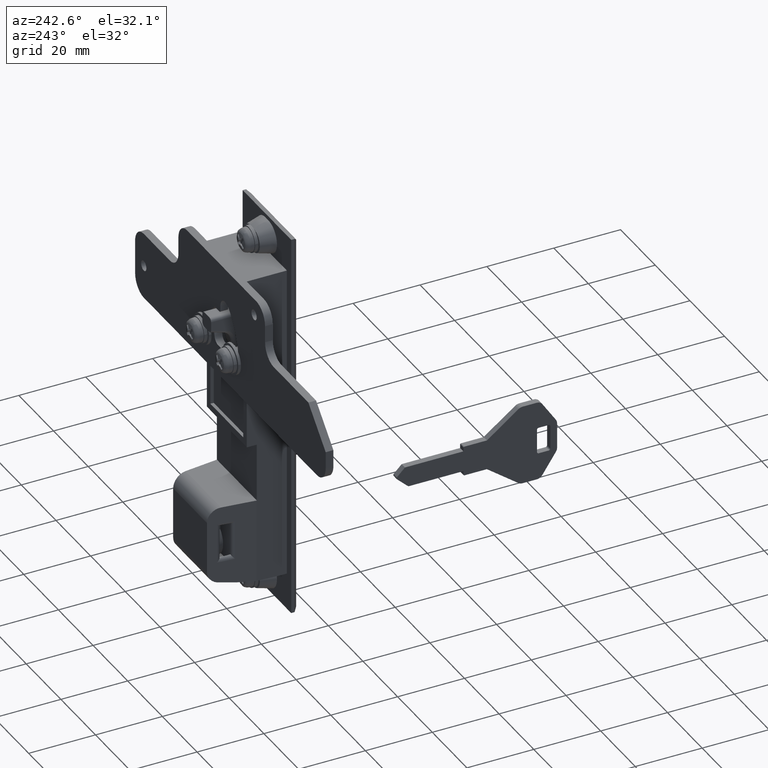
[diagram: clean part render]
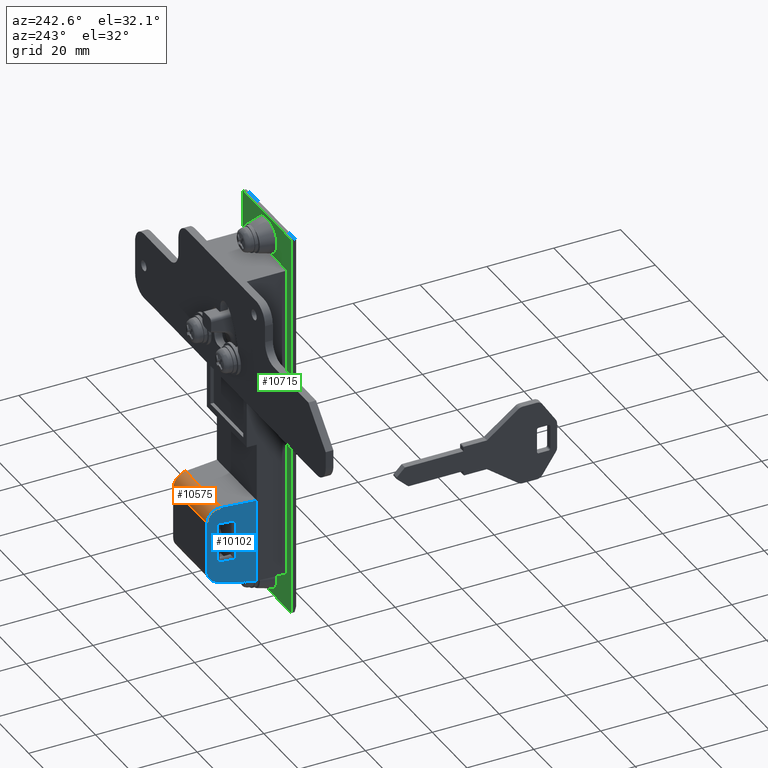
[diagram: same view with three faces highlighted in distinct colors, each labeled with its STEP entity id]
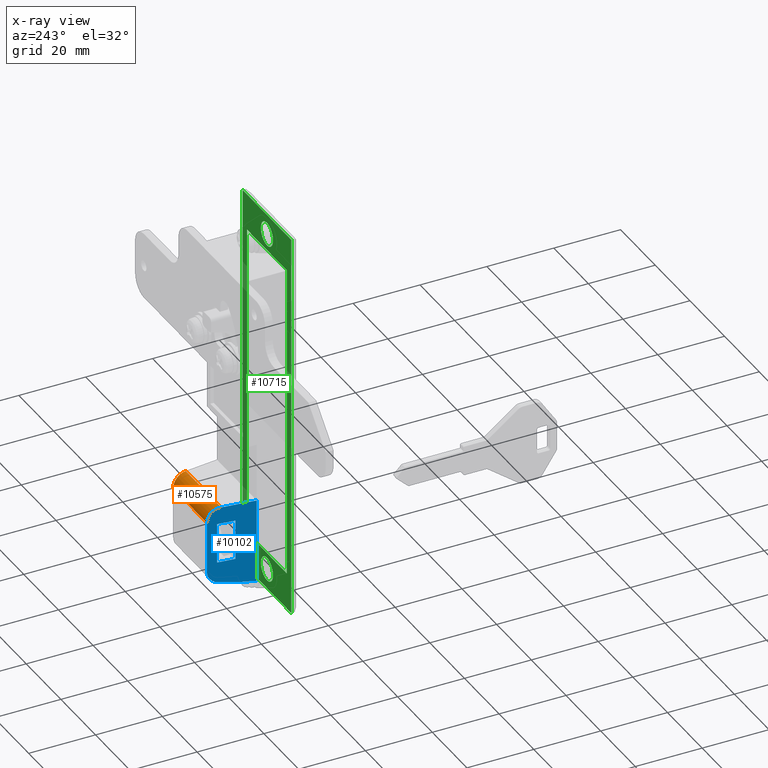
[diagram: x-ray of the same camera — body ghosted, the three highlighted faces saturated]
A machine part, auxiliary view with three faces highlighted in distinct colors.
The next image is the same camera in x-ray (body ghosted, the three faces saturated) — at least one of them is partly hidden behind the body in this view.
Their STEP definitions:

[orange] entity #10575 — the highlighted face is a freeform B-spline surface patch.
#10026=CARTESIAN_POINT('',(11.0,9.750000000000000,-48.499800000000000));
#10027=VERTEX_POINT('',#10026);
#10072=CARTESIAN_POINT('',(7.0,10.249999665476359,-44.499800000000000));
#10073=VERTEX_POINT('',#10072);
#10079=CARTESIAN_POINT('',(11.0,9.749999999999973,-48.499800000000000));
#10080=CARTESIAN_POINT('',(11.000000000000004,9.749999999999973,-46.842945750507624));
#10081=CARTESIAN_POINT('',(9.828427124746190,9.896446511426996,-45.671372875253809));
#10082=CARTESIAN_POINT('',(8.656854249492380,10.042893022854019,-44.499800000000000));
#10083=CARTESIAN_POINT('',(6.999999999999996,10.249999665476340,-44.499800000000008));
#10091=(BOUNDED_CURVE()B_SPLINE_CURVE(2,(#10079,#10080,#10081,#10082,#10083),.UNSPECIFIED.,.F.,.U.)B_SPLINE_CURVE_WITH_KNOTS((3,2,3),(0.0,0.500000000000000,1.0),.UNSPECIFIED.)CURVE()GEOMETRIC_REPRESENTATION_ITEM()RATIONAL_B_SPLINE_CURVE((1.0,0.923879532511285,1.0,0.923879532511285,1.0))REPRESENTATION_ITEM(''));
#10092=EDGE_CURVE('',#10027,#10073,#10091,.T.);
#10108=CARTESIAN_POINT('',(7.0,-10.249999665476260,-44.499800000000000));
#10109=VERTEX_POINT('',#10108);
#10154=CARTESIAN_POINT('',(11.0,-9.750000000000000,-48.499800000000000));
#10155=VERTEX_POINT('',#10154);
#10161=CARTESIAN_POINT('',(7.000000000000011,-10.249999665476340,-44.499800000000008));
#10162=CARTESIAN_POINT('',(8.656854314813476,-10.042893014688890,-44.499800000000008));
#10163=CARTESIAN_POINT('',(9.828427203595728,-9.896446501570811,-45.671372954103347));
#10164=CARTESIAN_POINT('',(11.000000092377972,-9.749999988452736,-46.842945908206694));
#10165=CARTESIAN_POINT('',(11.0,-9.750000000000000,-48.499800000000000));
#10173=(BOUNDED_CURVE()B_SPLINE_CURVE(2,(#10161,#10162,#10163,#10164,#10165),.UNSPECIFIED.,.F.,.U.)B_SPLINE_CURVE_WITH_KNOTS((3,2,3),(0.0,0.500000000000000,1.0),.UNSPECIFIED.)CURVE()GEOMETRIC_REPRESENTATION_ITEM()RATIONAL_B_SPLINE_CURVE((1.0,0.923879527177147,1.0,0.923879527177147,1.0))REPRESENTATION_ITEM(''));
#10174=EDGE_CURVE('',#10109,#10155,#10173,.T.);
#10541=CARTESIAN_POINT('',(11.0,9.750000000000000,-48.499800000000000));
#10542=CARTESIAN_POINT('',(11.0,-9.750000000000000,-48.499800000000000));
#10543=QUASI_UNIFORM_CURVE('',1,(#10541,#10542),.UNSPECIFIED.,.F.,.U.);
#10544=EDGE_CURVE('',#10027,#10155,#10543,.T.);
#10551=CARTESIAN_POINT('',(6.895292206768501,10.762499648750181,-44.501170700097767));
#10552=CARTESIAN_POINT('',(6.895292206768501,-10.775312148331921,-44.501170700097767));
#10553=CARTESIAN_POINT('',(11.259030354376472,10.762499648750177,-44.386902195216031));
#10554=CARTESIAN_POINT('',(11.259030354376472,-10.775312148331924,-44.386902195216031));
#10555=CARTESIAN_POINT('',(10.992539193687470,10.762499648750181,-48.743994158139422));
#10556=CARTESIAN_POINT('',(10.992539193687470,-10.775312148331921,-48.743994158139422));
#10564=(BOUNDED_SURFACE()B_SPLINE_SURFACE(1,2,((#10551,#10553,#10555),(#10552,#10554,#10556)),.UNSPECIFIED.,.F.,.F.,.U.)B_SPLINE_SURFACE_WITH_KNOTS((2,2),(3,3),(0.0,21.537811797082099),(0.0,7.040168494269333),.UNSPECIFIED.)GEOMETRIC_REPRESENTATION_ITEM()RATIONAL_B_SPLINE_SURFACE(((1.0,0.675590207615660,1.0),(1.0,0.675590207615660,1.0)))REPRESENTATION_ITEM('')SURFACE());
#10565=ORIENTED_EDGE('',*,*,#10544,.F.);
#10566=ORIENTED_EDGE('',*,*,#10092,.T.);
#10567=CARTESIAN_POINT('',(7.0,10.249999665476359,-44.499800000000000));
#10568=CARTESIAN_POINT('',(7.0,-10.249999665476260,-44.499800000000000));
#10569=QUASI_UNIFORM_CURVE('',1,(#10567,#10568),.UNSPECIFIED.,.F.,.U.);
#10570=EDGE_CURVE('',#10073,#10109,#10569,.T.);
#10571=ORIENTED_EDGE('',*,*,#10570,.T.);
#10572=ORIENTED_EDGE('',*,*,#10174,.T.);
#10573=EDGE_LOOP('',(#10565,#10566,#10571,#10572));
#10574=FACE_OUTER_BOUND('',#10573,.T.);
#10575=ADVANCED_FACE('',(#10574),#10564,.T.);

[blue] entity #10102 — the highlighted face is a freeform B-spline surface patch.
#8258=CARTESIAN_POINT('',(8.146694461923179,10.106662953635061,-61.500000000000000));
#8259=VERTEX_POINT('',#8258);
#8275=CARTESIAN_POINT('',(3.024034652880800,10.746995001352660,-61.500000000000000));
#8276=VERTEX_POINT('',#8275);
#8277=CARTESIAN_POINT('',(3.024034652880800,10.746995001352660,-61.500000000000000));
#8278=CARTESIAN_POINT('',(8.146694461923179,10.106662953635061,-61.500000000000000));
#8279=QUASI_UNIFORM_CURVE('',1,(#8277,#8278),.UNSPECIFIED.,.F.,.U.);
#8280=EDGE_CURVE('',#8276,#8259,#8279,.T.);
#8357=CARTESIAN_POINT('',(3.024034652880800,10.746995001352660,-49.500000000000000));
#8358=VERTEX_POINT('',#8357);
#8359=CARTESIAN_POINT('',(3.024034652880800,10.746995001352660,-49.500000000000000));
#8360=CARTESIAN_POINT('',(3.024034652880800,10.746995001352660,-61.500000000000000));
#8361=QUASI_UNIFORM_CURVE('',1,(#8359,#8360),.UNSPECIFIED.,.F.,.U.);
#8362=EDGE_CURVE('',#8358,#8276,#8361,.T.);
#8410=CARTESIAN_POINT('',(8.146694461923179,10.106662953635061,-49.500000000000000));
#8411=VERTEX_POINT('',#8410);
#8412=CARTESIAN_POINT('',(8.146694461923179,10.106662953635061,-49.500000000000000));
#8413=CARTESIAN_POINT('',(3.024034652880800,10.746995001352660,-49.500000000000000));
#8414=QUASI_UNIFORM_CURVE('',1,(#8412,#8413),.UNSPECIFIED.,.F.,.U.);
#8415=EDGE_CURVE('',#8411,#8358,#8414,.T.);
#8475=CARTESIAN_POINT('',(8.146694461923179,10.106662953635061,-61.500000000000000));
#8476=CARTESIAN_POINT('',(8.146694461923179,10.106662953635061,-49.500000000000000));
#8477=QUASI_UNIFORM_CURVE('',1,(#8475,#8476),.UNSPECIFIED.,.F.,.U.);
#8478=EDGE_CURVE('',#8259,#8411,#8477,.T.);
#10021=CARTESIAN_POINT('',(11.699300440730370,9.662587503391826,-70.956103281657505));
#10022=CARTESIAN_POINT('',(-3.699310182908576,11.587412543546900,-70.956103281657505));
#10023=CARTESIAN_POINT('',(11.699300440730370,9.662587503391826,-43.241177182372262));
#10024=CARTESIAN_POINT('',(-3.699310182908576,11.587412543546900,-43.241177182372262));
#10025=B_SPLINE_SURFACE_WITH_KNOTS('',1,1,((#10021,#10023),(#10022,#10024)),.UNSPECIFIED.,.F.,.F.,.U.,(2,2),(2,2),(0.0,15.518445816951321),(0.0,27.714926099285250),.UNSPECIFIED.);
#10026=CARTESIAN_POINT('',(11.0,9.750000000000000,-48.499800000000000));
#10027=VERTEX_POINT('',#10026);
#10028=CARTESIAN_POINT('',(11.0,9.750000000000000,-63.904000000000003));
#10029=VERTEX_POINT('',#10028);
#10030=CARTESIAN_POINT('',(11.0,9.750000000000000,-48.499800000000000));
#10031=CARTESIAN_POINT('',(11.0,9.750000000000000,-63.904000000000003));
#10032=QUASI_UNIFORM_CURVE('',1,(#10030,#10031),.UNSPECIFIED.,.F.,.U.);
#10033=EDGE_CURVE('',#10027,#10029,#10032,.T.);
#10034=ORIENTED_EDGE('',*,*,#10033,.T.);
#10035=CARTESIAN_POINT('',(7.999679747244529,10.125039780674919,-67.777178639797597));
#10036=VERTEX_POINT('',#10035);
#10037=CARTESIAN_POINT('',(7.999679747244531,10.125039780674941,-67.777178639797583));
#10038=CARTESIAN_POINT('',(10.999858723269265,9.750017659579543,-67.002564366644535));
#10039=CARTESIAN_POINT('',(11.0,9.750000000000000,-63.904000000000003));
#10047=(BOUNDED_CURVE()B_SPLINE_CURVE(2,(#10037,#10038,#10039),.UNSPECIFIED.,.F.,.U.)CURVE()GEOMETRIC_REPRESENTATION_ITEM()QUASI_UNIFORM_CURVE()RATIONAL_B_SPLINE_CURVE((1.0,0.790580638141583,1.0))REPRESENTATION_ITEM(''));
#10048=EDGE_CURVE('',#10036,#10029,#10047,.T.);
#10049=ORIENTED_EDGE('',*,*,#10048,.F.);
#10050=CARTESIAN_POINT('',(-3.000009366668015,11.500000000000000,-69.697475958334195));
#10051=VERTEX_POINT('',#10050);
#10052=CARTESIAN_POINT('',(-3.000009366668015,11.500000000000000,-69.697475958334195));
#10053=CARTESIAN_POINT('',(2.576652608822311,10.802917719445068,-69.177346516010218));
#10054=CARTESIAN_POINT('',(7.999679747244652,10.125039780674960,-67.777178639797597));
#10062=(BOUNDED_CURVE()B_SPLINE_CURVE(2,(#10052,#10053,#10054),.UNSPECIFIED.,.F.,.U.)CURVE()GEOMETRIC_REPRESENTATION_ITEM()QUASI_UNIFORM_CURVE()RATIONAL_B_SPLINE_CURVE((1.0,0.996814822493567,1.0))REPRESENTATION_ITEM(''));
#10063=EDGE_CURVE('',#10051,#10036,#10062,.T.);
#10064=ORIENTED_EDGE('',*,*,#10063,.F.);
#10065=CARTESIAN_POINT('',(-3.000009366668705,11.500000000000000,-44.499800000000000));
#10066=VERTEX_POINT('',#10065);
#10067=CARTESIAN_POINT('',(-3.000009366668705,11.500000000000000,-44.499800000000000));
#10068=CARTESIAN_POINT('',(-3.000009366668015,11.500000000000000,-69.697475958334195));
#10069=QUASI_UNIFORM_CURVE('',1,(#10067,#10068),.UNSPECIFIED.,.F.,.U.);
#10070=EDGE_CURVE('',#10066,#10051,#10069,.T.);
#10071=ORIENTED_EDGE('',*,*,#10070,.F.);
#10072=CARTESIAN_POINT('',(7.0,10.249999665476359,-44.499800000000000));
#10073=VERTEX_POINT('',#10072);
#10074=CARTESIAN_POINT('',(-3.000009366668705,11.500000000000000,-44.499800000000000));
#10075=CARTESIAN_POINT('',(7.0,10.249999665476359,-44.499800000000000));
#10076=QUASI_UNIFORM_CURVE('',1,(#10074,#10075),.UNSPECIFIED.,.F.,.U.);
#10077=EDGE_CURVE('',#10066,#10073,#10076,.T.);
#10078=ORIENTED_EDGE('',*,*,#10077,.T.);
#10079=CARTESIAN_POINT('',(11.0,9.749999999999973,-48.499800000000000));
#10080=CARTESIAN_POINT('',(11.000000000000004,9.749999999999973,-46.842945750507624));
#10081=CARTESIAN_POINT('',(9.828427124746190,9.896446511426996,-45.671372875253809));
#10082=CARTESIAN_POINT('',(8.656854249492380,10.042893022854019,-44.499800000000000));
#10083=CARTESIAN_POINT('',(6.999999999999996,10.249999665476340,-44.499800000000008));
#10091=(BOUNDED_CURVE()B_SPLINE_CURVE(2,(#10079,#10080,#10081,#10082,#10083),.UNSPECIFIED.,.F.,.U.)B_SPLINE_CURVE_WITH_KNOTS((3,2,3),(0.0,0.500000000000000,1.0),.UNSPECIFIED.)CURVE()GEOMETRIC_REPRESENTATION_ITEM()RATIONAL_B_SPLINE_CURVE((1.0,0.923879532511285,1.0,0.923879532511285,1.0))REPRESENTATION_ITEM(''));
#10092=EDGE_CURVE('',#10027,#10073,#10091,.T.);
#10093=ORIENTED_EDGE('',*,*,#10092,.F.);
#10094=EDGE_LOOP('',(#10034,#10049,#10064,#10071,#10078,#10093));
#10095=FACE_OUTER_BOUND('',#10094,.T.);
#10096=ORIENTED_EDGE('',*,*,#8362,.T.);
#10097=ORIENTED_EDGE('',*,*,#8280,.T.);
#10098=ORIENTED_EDGE('',*,*,#8478,.T.);
#10099=ORIENTED_EDGE('',*,*,#8415,.T.);
#10100=EDGE_LOOP('',(#10096,#10097,#10098,#10099));
#10101=FACE_BOUND('',#10100,.T.);
#10102=ADVANCED_FACE('',(#10095,#10101),#10025,.T.);

[green] entity #10715 — the highlighted face is a freeform B-spline surface patch.
#6758=CARTESIAN_POINT('',(-12.000000000037970,-3.493471794458334,-75.213469888747227));
#6759=VERTEX_POINT('',#6758);
#6765=CARTESIAN_POINT('',(-12.0,0.0,-78.499800000000008));
#6766=VERTEX_POINT('',#6765);
#6767=CARTESIAN_POINT('',(-12.0,0.0,-78.499800000000008));
#6768=CARTESIAN_POINT('',(-12.0,-3.292471233461905,-78.499800000000022));
#6769=CARTESIAN_POINT('',(-12.000000000037970,-3.493471794458335,-75.213469888747227));
#6777=(BOUNDED_CURVE()B_SPLINE_CURVE(2,(#6767,#6768,#6769),.UNSPECIFIED.,.F.,.U.)B_SPLINE_CURVE_WITH_KNOTS((3,3),(0.500000000000000,0.739332962204932),.UNSPECIFIED.)CURVE()GEOMETRIC_REPRESENTATION_ITEM()RATIONAL_B_SPLINE_CURVE((1.0,0.719603993326556,0.976072041593826))REPRESENTATION_ITEM(''));
#6778=EDGE_CURVE('',#6766,#6759,#6777,.T.);
#6780=CARTESIAN_POINT('',(-12.000000000030891,3.475533342243228,-74.586680178419613));
#6781=VERTEX_POINT('',#6780);
#6782=CARTESIAN_POINT('',(-12.000000000030893,3.475533342243228,-74.586680178419613));
#6783=CARTESIAN_POINT('',(-12.000000000000002,3.500000000000000,-74.792515580934079));
#6784=CARTESIAN_POINT('',(-12.0,3.500000000000000,-74.999800000000008));
#6785=CARTESIAN_POINT('',(-12.0,3.500000000000000,-78.499800000000008));
#6786=CARTESIAN_POINT('',(-12.0,0.0,-78.499800000000008));
#6794=(BOUNDED_CURVE()B_SPLINE_CURVE(2,(#6782,#6783,#6784,#6785,#6786),.UNSPECIFIED.,.F.,.U.)B_SPLINE_CURVE_WITH_KNOTS((3,2,3),(0.229562473488289,0.250000000000000,0.500000000000000),.UNSPECIFIED.)CURVE()GEOMETRIC_REPRESENTATION_ITEM()RATIONAL_B_SPLINE_CURVE((0.956026754134269,0.976055948301599,1.0,0.707106781186547,1.0))REPRESENTATION_ITEM(''));
#6795=EDGE_CURVE('',#6781,#6766,#6794,.T.);
#6839=CARTESIAN_POINT('',(-12.0,0.0,-71.499800000000008));
#6840=VERTEX_POINT('',#6839);
#6841=CARTESIAN_POINT('',(-12.0,0.0,-71.499800000000008));
#6842=CARTESIAN_POINT('',(-12.000000000000002,3.108610840323085,-71.499800000000008));
#6843=CARTESIAN_POINT('',(-12.000000000030900,3.475533342243228,-74.586680178419613));
#6851=(BOUNDED_CURVE()B_SPLINE_CURVE(2,(#6841,#6842,#6843),.UNSPECIFIED.,.F.,.U.)B_SPLINE_CURVE_WITH_KNOTS((3,3),(0.0,0.229562473488289),.UNSPECIFIED.)CURVE()GEOMETRIC_REPRESENTATION_ITEM()RATIONAL_B_SPLINE_CURVE((1.0,0.731050832884948,0.956026754134269))REPRESENTATION_ITEM(''));
#6852=EDGE_CURVE('',#6840,#6781,#6851,.T.);
#6854=CARTESIAN_POINT('',(-12.000000000037970,-3.493471794458334,-75.213469888747227));
#6855=CARTESIAN_POINT('',(-11.999999999999998,-3.500000000000000,-75.106734671921046));
#6856=CARTESIAN_POINT('',(-12.0,-3.500000000000000,-74.999800000000008));
#6857=CARTESIAN_POINT('',(-12.0,-3.500000000000000,-71.499800000000008));
#6858=CARTESIAN_POINT('',(-12.0,0.0,-71.499800000000008));
#6866=(BOUNDED_CURVE()B_SPLINE_CURVE(2,(#6854,#6855,#6856,#6857,#6858),.UNSPECIFIED.,.F.,.U.)B_SPLINE_CURVE_WITH_KNOTS((3,2,3),(0.739332962204932,0.750000000000000,1.0),.UNSPECIFIED.)CURVE()GEOMETRIC_REPRESENTATION_ITEM()RATIONAL_B_SPLINE_CURVE((0.976072041593826,0.987502787859991,1.0,0.707106781186547,1.0))REPRESENTATION_ITEM(''));
#6867=EDGE_CURVE('',#6759,#6840,#6866,.T.);
#7130=CARTESIAN_POINT('',(-12.000000000037970,-3.493471794458334,29.786330111252781));
#7131=VERTEX_POINT('',#7130);
#7137=CARTESIAN_POINT('',(-12.0,0.0,26.500000000000000));
#7138=VERTEX_POINT('',#7137);
#7139=CARTESIAN_POINT('',(-12.0,0.0,26.500000000000000));
#7140=CARTESIAN_POINT('',(-12.0,-3.292471233461905,26.500000000000007));
#7141=CARTESIAN_POINT('',(-12.000000000037970,-3.493471794458335,29.786330111252781));
#7149=(BOUNDED_CURVE()B_SPLINE_CURVE(2,(#7139,#7140,#7141),.UNSPECIFIED.,.F.,.U.)B_SPLINE_CURVE_WITH_KNOTS((3,3),(0.500000000000000,0.739332962204932),.UNSPECIFIED.)CURVE()GEOMETRIC_REPRESENTATION_ITEM()RATIONAL_B_SPLINE_CURVE((1.0,0.719603993326556,0.976072041593826))REPRESENTATION_ITEM(''));
#7150=EDGE_CURVE('',#7138,#7131,#7149,.T.);
#7152=CARTESIAN_POINT('',(-12.000000000030891,3.475533342243228,30.413119821580381));
#7153=VERTEX_POINT('',#7152);
#7154=CARTESIAN_POINT('',(-12.000000000030896,3.475533342243228,30.413119821580374));
#7155=CARTESIAN_POINT('',(-12.000000000000004,3.500000000000000,30.207284419065925));
#7156=CARTESIAN_POINT('',(-12.0,3.500000000000000,30.0));
#7157=CARTESIAN_POINT('',(-12.0,3.500000000000000,26.500000000000007));
#7158=CARTESIAN_POINT('',(-12.0,0.0,26.500000000000000));
#7166=(BOUNDED_CURVE()B_SPLINE_CURVE(2,(#7154,#7155,#7156,#7157,#7158),.UNSPECIFIED.,.F.,.U.)B_SPLINE_CURVE_WITH_KNOTS((3,2,3),(0.229562473488290,0.250000000000000,0.500000000000000),.UNSPECIFIED.)CURVE()GEOMETRIC_REPRESENTATION_ITEM()RATIONAL_B_SPLINE_CURVE((0.956026754134270,0.976055948301600,1.0,0.707106781186547,1.0))REPRESENTATION_ITEM(''));
#7167=EDGE_CURVE('',#7153,#7138,#7166,.T.);
#7211=CARTESIAN_POINT('',(-12.0,0.0,33.500000000000000));
#7212=VERTEX_POINT('',#7211);
#7213=CARTESIAN_POINT('',(-12.0,0.0,33.500000000000000));
#7214=CARTESIAN_POINT('',(-12.0,3.108610840323096,33.500000000000000));
#7215=CARTESIAN_POINT('',(-12.000000000030894,3.475533342243229,30.413119821580384));
#7223=(BOUNDED_CURVE()B_SPLINE_CURVE(2,(#7213,#7214,#7215),.UNSPECIFIED.,.F.,.U.)B_SPLINE_CURVE_WITH_KNOTS((3,3),(0.0,0.229562473488290),.UNSPECIFIED.)CURVE()GEOMETRIC_REPRESENTATION_ITEM()RATIONAL_B_SPLINE_CURVE((1.0,0.731050832884948,0.956026754134270))REPRESENTATION_ITEM(''));
#7224=EDGE_CURVE('',#7212,#7153,#7223,.T.);
#7226=CARTESIAN_POINT('',(-12.000000000037970,-3.493471794458334,29.786330111252781));
#7227=CARTESIAN_POINT('',(-11.999999999999998,-3.500000000000000,29.893065328078961));
#7228=CARTESIAN_POINT('',(-12.0,-3.500000000000000,30.0));
#7229=CARTESIAN_POINT('',(-12.0,-3.500000000000000,33.500000000000000));
#7230=CARTESIAN_POINT('',(-12.0,0.0,33.500000000000000));
#7238=(BOUNDED_CURVE()B_SPLINE_CURVE(2,(#7226,#7227,#7228,#7229,#7230),.UNSPECIFIED.,.F.,.U.)B_SPLINE_CURVE_WITH_KNOTS((3,2,3),(0.739332962204932,0.750000000000000,1.0),.UNSPECIFIED.)CURVE()GEOMETRIC_REPRESENTATION_ITEM()RATIONAL_B_SPLINE_CURVE((0.976072041593826,0.987502787859991,1.0,0.707106781186547,1.0))REPRESENTATION_ITEM(''));
#7239=EDGE_CURVE('',#7131,#7212,#7238,.T.);
#10186=CARTESIAN_POINT('',(-12.0,-11.500000000000000,-69.999800000000008));
#10187=VERTEX_POINT('',#10186);
#10193=CARTESIAN_POINT('',(-12.0,11.500000000000000,-69.999800000000008));
#10194=VERTEX_POINT('',#10193);
#10195=CARTESIAN_POINT('',(-12.0,11.500000000000000,-69.999800000000008));
#10196=CARTESIAN_POINT('',(-12.0,-11.500000000000000,-69.999800000000008));
#10197=QUASI_UNIFORM_CURVE('',1,(#10195,#10196),.UNSPECIFIED.,.F.,.U.);
#10198=EDGE_CURVE('',#10194,#10187,#10197,.T.);
#10280=CARTESIAN_POINT('',(-12.0,-11.500000000000000,25.0));
#10281=VERTEX_POINT('',#10280);
#10296=CARTESIAN_POINT('',(-12.0,11.500000000000000,25.0));
#10297=VERTEX_POINT('',#10296);
#10303=CARTESIAN_POINT('',(-12.0,11.500000000000000,25.0));
#10304=CARTESIAN_POINT('',(-12.0,-11.500000000000000,25.0));
#10305=QUASI_UNIFORM_CURVE('',1,(#10303,#10304),.UNSPECIFIED.,.F.,.U.);
#10306=EDGE_CURVE('',#10297,#10281,#10305,.T.);
#10316=CARTESIAN_POINT('',(-12.0,-14.0,36.0));
#10317=VERTEX_POINT('',#10316);
#10324=CARTESIAN_POINT('',(-12.0,-14.0,-80.999799999999993));
#10325=VERTEX_POINT('',#10324);
#10331=CARTESIAN_POINT('',(-12.0,-14.0,-80.999799999999993));
#10332=CARTESIAN_POINT('',(-12.0,-14.0,36.0));
#10333=QUASI_UNIFORM_CURVE('',1,(#10331,#10332),.UNSPECIFIED.,.F.,.U.);
#10334=EDGE_CURVE('',#10325,#10317,#10333,.T.);
#10346=CARTESIAN_POINT('',(-12.0,14.0,-80.999799999999993));
#10347=VERTEX_POINT('',#10346);
#10353=CARTESIAN_POINT('',(-12.0,14.0,-80.999799999999993));
#10354=CARTESIAN_POINT('',(-12.0,-14.0,-80.999799999999993));
#10355=QUASI_UNIFORM_CURVE('',1,(#10353,#10354),.UNSPECIFIED.,.F.,.U.);
#10356=EDGE_CURVE('',#10347,#10325,#10355,.T.);
#10368=CARTESIAN_POINT('',(-12.0,14.0,36.0));
#10369=VERTEX_POINT('',#10368);
#10375=CARTESIAN_POINT('',(-12.0,14.0,36.0));
#10376=CARTESIAN_POINT('',(-12.0,14.0,-80.999799999999993));
#10377=QUASI_UNIFORM_CURVE('',1,(#10375,#10376),.UNSPECIFIED.,.F.,.U.);
#10378=EDGE_CURVE('',#10369,#10347,#10377,.T.);
#10391=CARTESIAN_POINT('',(-12.0,-14.0,36.0));
#10392=CARTESIAN_POINT('',(-12.0,14.0,36.0));
#10393=QUASI_UNIFORM_CURVE('',1,(#10391,#10392),.UNSPECIFIED.,.F.,.U.);
#10394=EDGE_CURVE('',#10317,#10369,#10393,.T.);
#10426=CARTESIAN_POINT('',(-12.0,-11.500000000000000,-69.999800000000008));
#10427=CARTESIAN_POINT('',(-12.0,-11.500000000000000,25.0));
#10428=QUASI_UNIFORM_CURVE('',1,(#10426,#10427),.UNSPECIFIED.,.F.,.U.);
#10429=EDGE_CURVE('',#10187,#10281,#10428,.T.);
#10461=CARTESIAN_POINT('',(-12.0,11.500000000000000,-69.999800000000008));
#10462=CARTESIAN_POINT('',(-12.0,11.500000000000000,25.0));
#10463=QUASI_UNIFORM_CURVE('',1,(#10461,#10462),.UNSPECIFIED.,.F.,.U.);
#10464=EDGE_CURVE('',#10194,#10297,#10463,.T.);
#10686=CARTESIAN_POINT('',(-12.0,15.398599945730570,41.844139783231697));
#10687=CARTESIAN_POINT('',(-12.0,-15.398600696749090,41.844139783231697));
#10688=CARTESIAN_POINT('',(-12.0,15.398599945730570,-86.843942921410871));
#10689=CARTESIAN_POINT('',(-12.0,-15.398600696749090,-86.843942921410871));
#10690=B_SPLINE_SURFACE_WITH_KNOTS('',1,1,((#10686,#10688),(#10687,#10689)),.UNSPECIFIED.,.F.,.F.,.U.,(2,2),(2,2),(0.0,30.797200642479659),(0.0,128.688082704642600),.UNSPECIFIED.);
#10691=ORIENTED_EDGE('',*,*,#10394,.F.);
#10692=ORIENTED_EDGE('',*,*,#10334,.F.);
#10693=ORIENTED_EDGE('',*,*,#10356,.F.);
#10694=ORIENTED_EDGE('',*,*,#10378,.F.);
#10695=EDGE_LOOP('',(#10691,#10692,#10693,#10694));
#10696=FACE_OUTER_BOUND('',#10695,.T.);
#10697=ORIENTED_EDGE('',*,*,#10306,.F.);
#10698=ORIENTED_EDGE('',*,*,#10464,.F.);
#10699=ORIENTED_EDGE('',*,*,#10198,.T.);
#10700=ORIENTED_EDGE('',*,*,#10429,.T.);
#10701=EDGE_LOOP('',(#10697,#10698,#10699,#10700));
#10702=FACE_BOUND('',#10701,.T.);
#10703=ORIENTED_EDGE('',*,*,#7150,.T.);
#10704=ORIENTED_EDGE('',*,*,#7239,.T.);
#10705=ORIENTED_EDGE('',*,*,#7224,.T.);
#10706=ORIENTED_EDGE('',*,*,#7167,.T.);
#10707=EDGE_LOOP('',(#10703,#10704,#10705,#10706));
#10708=FACE_BOUND('',#10707,.T.);
#10709=ORIENTED_EDGE('',*,*,#6778,.T.);
#10710=ORIENTED_EDGE('',*,*,#6867,.T.);
#10711=ORIENTED_EDGE('',*,*,#6852,.T.);
#10712=ORIENTED_EDGE('',*,*,#6795,.T.);
#10713=EDGE_LOOP('',(#10709,#10710,#10711,#10712));
#10714=FACE_BOUND('',#10713,.T.);
#10715=ADVANCED_FACE('',(#10696,#10702,#10708,#10714),#10690,.T.);